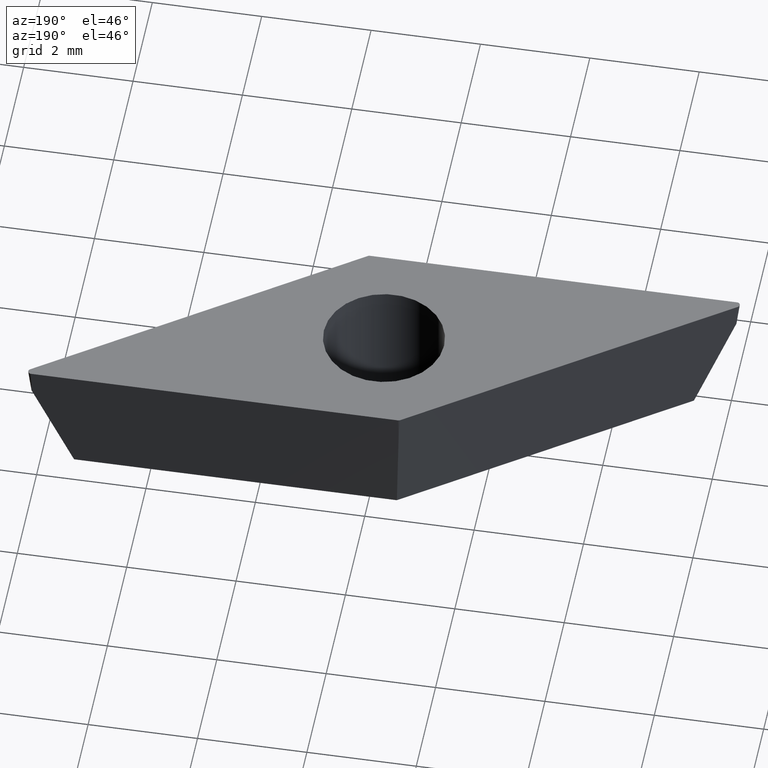
[diagram: clean part render]
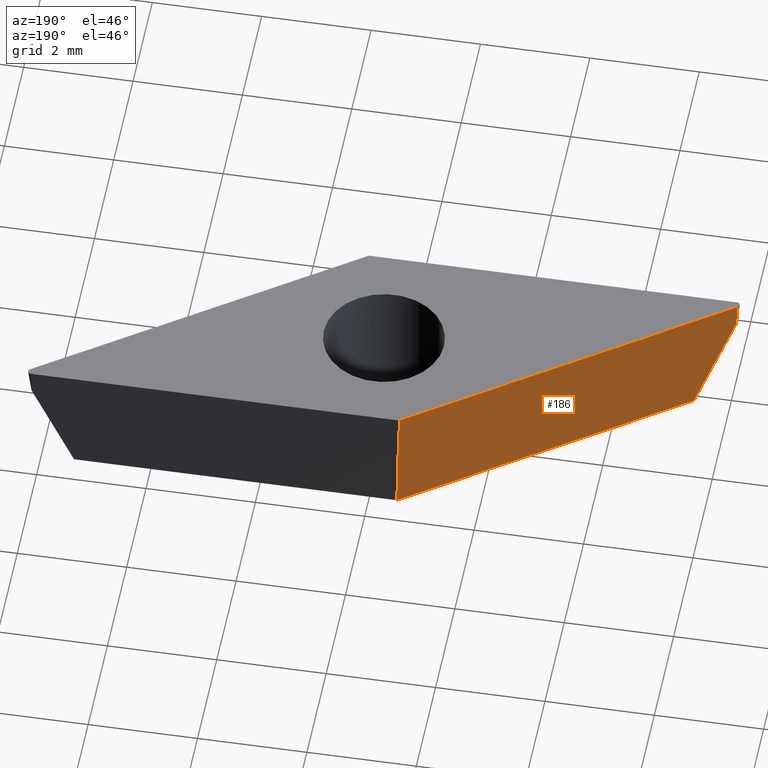
[diagram: same view with one face highlighted and labeled with its STEP entity id]
A machine part, auxiliary view. The second image highlights one B-rep face of the part: STEP entity #186.
In plain terms, the highlighted face is a freeform B-spline surface patch.
Its self-contained STEP definition (entity closure, byte-faithful):
#2 = B_SPLINE_SURFACE_WITH_KNOTS ( 'NONE', 1, 3, ( 
 ( #154, #255, #249, #193 ),
 ( #91, #301, #257, #195 ) ),
 .UNSPECIFIED., .F., .F., .F.,
 ( 2, 2 ),
 ( 4, 4 ),
 ( 0.0000000000000000000, 1.000000000000000000 ),
 ( -0.006902565851283072100, -0.0001902956881417939700 ),
 .UNSPECIFIED. ) ;
#33 = VECTOR ( 'NONE', #103, 1000.000000000000000 ) ;
#44 = LINE ( 'NONE', #90, #33 ) ;
#53 = EDGE_CURVE ( 'NONE', #454, #298, #323, .T. ) ;
#56 = CARTESIAN_POINT ( 'NONE',  ( -5.982564868755330800, -1.886295457508516700, -0.8038839880653910800 ) ) ;
#57 = LINE ( 'NONE', #148, #63 ) ;
#60 = VECTOR ( 'NONE', #216, 1000.000000000000000 ) ;
#61 = CARTESIAN_POINT ( 'NONE',  ( -0.5581361871052711300, 1.770181830034056400, -1.749553595226165200 ) ) ;
#63 = VECTOR ( 'NONE', #106, 1000.000000000000200 ) ;
#65 = LINE ( 'NONE', #83, #60 ) ;
#71 = CARTESIAN_POINT ( 'NONE',  ( -5.368789239785836100, -1.692772745051088300, -2.380000000000000300 ) ) ;
#79 = CARTESIAN_POINT ( 'NONE',  ( -0.5337291963618879800, 1.692772745051086300, -2.379999999999999900 ) ) ;
#80 = CARTESIAN_POINT ( 'NONE',  ( -0.6413647547731044000, 1.974149122657338900, 0.0000000000000000000 ) ) ;
#83 = CARTESIAN_POINT ( 'NONE',  ( -0.6413647547731052800, 1.974149122657338000, 0.0000000000000000000 ) ) ;
#85 = EDGE_CURVE ( 'NONE', #298, #381, #210, .T. ) ;
#90 = CARTESIAN_POINT ( 'NONE',  ( -6.139734580730306300, -1.875850877342661900, 0.0000000000000000000 ) ) ;
#91 = CARTESIAN_POINT ( 'NONE',  ( -0.4402271537752110400, 1.686894858711301500, -2.855999999999999400 ) ) ;
#103 = DIRECTION ( 'NONE',  ( -0.06990138369076599700, 0.09982952178648429900, 0.9925461516413219800 ) ) ;
#106 = DIRECTION ( 'NONE',  ( -0.8191520442889948000, -0.5735764363510418300, -0.0000000000000000000 ) ) ;
#139 = CARTESIAN_POINT ( 'NONE',  ( -0.5337291963618879800, 1.692772745051086300, -2.379999999999999900 ) ) ;
#148 = CARTESIAN_POINT ( 'NONE',  ( -6.295615682691038600, -1.985000000000001400, 0.0000000000000000000 ) ) ;
#154 = CARTESIAN_POINT ( 'NONE',  ( -0.6413647547731052800, 1.974149122657338000, 0.0000000000000000000 ) ) ;
#159 = CARTESIAN_POINT ( 'NONE',  ( -0.6069501685920412100, 1.924999999999996300, -0.4886607856784962500 ) ) ;
#165 = CARTESIAN_POINT ( 'NONE',  ( -2.145415877502627700, 0.5642575816828707700, -2.379999999999999400 ) ) ;
#167 = CARTESIAN_POINT ( 'NONE',  ( -0.5825431778486549500, 1.847590915017026900, -1.119107190452330600 ) ) ;
#169 = CARTESIAN_POINT ( 'NONE',  ( -0.5947466732203474700, 1.886295457508511800, -0.8038839880654133900 ) ) ;
#170 = CARTESIAN_POINT ( 'NONE',  ( -0.5703396824769630900, 1.808886372525541700, -1.434330392839247900 ) ) ;
#172 = FACE_OUTER_BOUND ( 'NONE', #394, .T. ) ;
#177 = CARTESIAN_POINT ( 'NONE',  ( -3.757102558644187500, -0.5642575816841700600, -2.379999999999999400 ) ) ;
#186 = ADVANCED_FACE ( 'NONE', ( #172 ), #2, .T. ) ;
#192 = CARTESIAN_POINT ( 'NONE',  ( -6.105319994549243600, -1.925000000000001600, -0.4886607856784739300 ) ) ;
#193 = CARTESIAN_POINT ( 'NONE',  ( -6.139734580730306300, -1.875850877342661900, 0.0000000000000000000 ) ) ;
#195 = CARTESIAN_POINT ( 'NONE',  ( -5.938596979732412100, -2.163105141288698400, -2.855999999999999400 ) ) ;
#198 = CARTESIAN_POINT ( 'NONE',  ( -5.368789239785836100, -1.692772745051088300, -2.380000000000000300 ) ) ;
#200 = CARTESIAN_POINT ( 'NONE',  ( -0.6069501685920412100, 1.924999999999996300, -0.4886607856784962500 ) ) ;
#201 = VERTEX_POINT ( 'NONE', #461 ) ;
#210 = B_SPLINE_CURVE_WITH_KNOTS ( 'NONE', 3,
 ( #198, #236, #335, #315, #355, #56, #342 ),
 .UNSPECIFIED., .F., .F.,
 ( 4, 3, 4 ),
 ( 0.0000000000000000000, 0.001021465989923774700, 0.002042931979847550300 ),
 .UNSPECIFIED. ) ;
#216 = DIRECTION ( 'NONE',  ( 0.06990138369076599700, -0.09982952178648429900, -0.9925461516413219800 ) ) ;
#226 = CARTESIAN_POINT ( 'NONE',  ( -0.5459326917335797200, 1.731477287542571500, -2.064776797613082400 ) ) ;
#236 = CARTESIAN_POINT ( 'NONE',  ( -5.491544365579727600, -1.731477287542574100, -2.064776797613075300 ) ) ;
#249 = CARTESIAN_POINT ( 'NONE',  ( -4.306944638744127500, -0.5925175440099717000, 0.0000000000000000000 ) ) ;
#255 = CARTESIAN_POINT ( 'NONE',  ( -2.474154696758121800, 0.6908157893229864800, 0.0000000000000000000 ) ) ;
#257 = CARTESIAN_POINT ( 'NONE',  ( -4.105807037746341600, -0.8797718079558418700, -2.855999999999999400 ) ) ;
#266 = B_SPLINE_CURVE_WITH_KNOTS ( 'NONE', 3,
 ( #139, #226, #61, #170, #167, #169, #159 ),
 .UNSPECIFIED., .F., .F.,
 ( 4, 3, 4 ),
 ( 0.0000000000000000000, 0.0009534745450647487100, 0.001906949090129497000 ),
 .UNSPECIFIED. ) ;
#290 = ORIENTED_EDGE ( 'NONE', *, *, #445, .F. ) ;
#293 = ORIENTED_EDGE ( 'NONE', *, *, #367, .T. ) ;
#298 = VERTEX_POINT ( 'NONE', #71 ) ;
#299 = ORIENTED_EDGE ( 'NONE', *, *, #483, .F. ) ;
#300 = ORIENTED_EDGE ( 'NONE', *, *, #53, .T. ) ;
#301 = CARTESIAN_POINT ( 'NONE',  ( -2.273017095760231100, 0.4035615253769474500, -2.855999999999999400 ) ) ;
#303 = ORIENTED_EDGE ( 'NONE', *, *, #85, .T. ) ;
#305 = ORIENTED_EDGE ( 'NONE', *, *, #448, .T. ) ;
#315 = CARTESIAN_POINT ( 'NONE',  ( -5.737054617167523900, -1.808886372525546000, -1.434330392839231200 ) ) ;
#320 = CARTESIAN_POINT ( 'NONE',  ( -0.5337291963618879800, 1.692772745051086300, -2.379999999999999900 ) ) ;
#323 = B_SPLINE_CURVE_WITH_KNOTS ( 'NONE', 3,
 ( #320, #165, #177, #348 ),
 .UNSPECIFIED., .F., .F.,
 ( 4, 4 ),
 ( 0.0000000000000000000, 0.005902518436147910100 ),
 .UNSPECIFIED. ) ;
#335 = CARTESIAN_POINT ( 'NONE',  ( -5.614299491373622600, -1.770181830034060400, -1.749553595226152300 ) ) ;
#342 = CARTESIAN_POINT ( 'NONE',  ( -6.105319994549243600, -1.925000000000001600, -0.4886607856784739300 ) ) ;
#348 = CARTESIAN_POINT ( 'NONE',  ( -5.368789239785836100, -1.692772745051088300, -2.380000000000000300 ) ) ;
#355 = CARTESIAN_POINT ( 'NONE',  ( -5.859809742961425100, -1.847590915017031500, -1.119107190452310200 ) ) ;
#367 = EDGE_CURVE ( 'NONE', #455, #375, #65, .T. ) ;
#375 = VERTEX_POINT ( 'NONE', #200 ) ;
#381 = VERTEX_POINT ( 'NONE', #192 ) ;
#394 = EDGE_LOOP ( 'NONE', ( #290, #293, #299, #300, #303, #305 ) ) ;
#445 = EDGE_CURVE ( 'NONE', #455, #201, #57, .T. ) ;
#448 = EDGE_CURVE ( 'NONE', #381, #201, #44, .T. ) ;
#454 = VERTEX_POINT ( 'NONE', #79 ) ;
#455 = VERTEX_POINT ( 'NONE', #80 ) ;
#461 = CARTESIAN_POINT ( 'NONE',  ( -6.139734580730306300, -1.875850877342662100, 0.0000000000000000000 ) ) ;
#483 = EDGE_CURVE ( 'NONE', #454, #375, #266, .T. ) ;